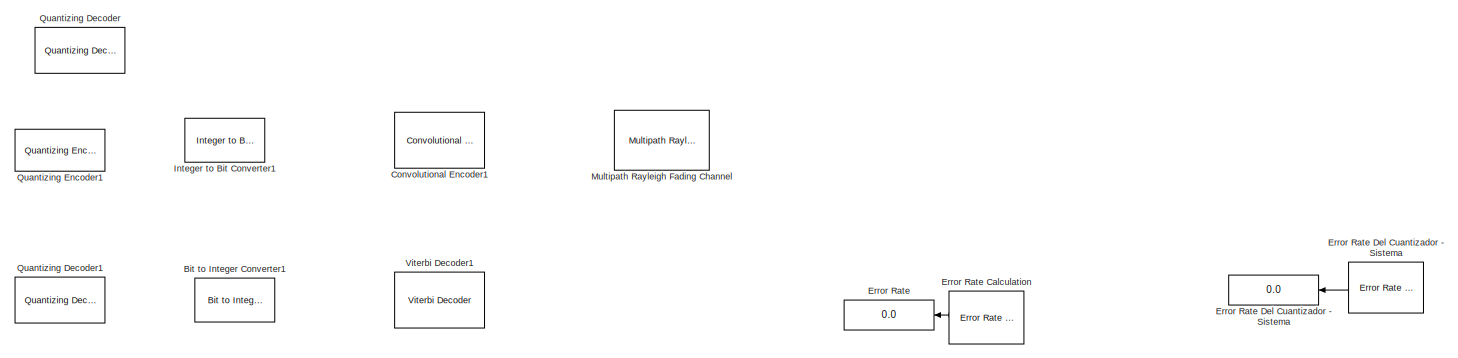
[diagram: root canvas - part 1/2, central region]
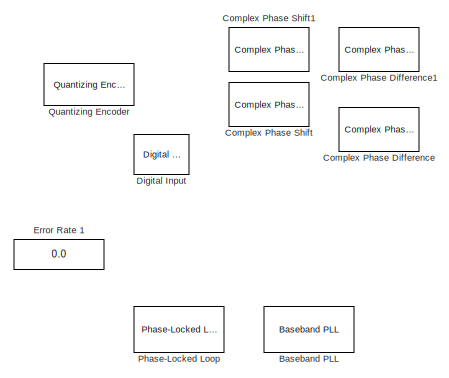
[diagram: root canvas - part 2/2, middle left region]
MODEL slx_0448f2ebf8d8
KIND model
CONFIG AbsTol = auto
CONFIG FixedStep = auto
CONFIG MaxStep = auto
CONFIG MinStep = auto
CONFIG RelTol = 1e-3
CONFIG SampleTimeConstraint = Unconstrained
CONFIG Solver = VariableStepAuto
CONFIG SolverMode = Auto
CONFIG SolverName = VariableStepAuto
CONFIG StartTime = 0.0
CONFIG StopTime = 10.0
BLOCK [Reference] Baseband PLL  REF=commsynccomp2/Baseband
PLL
  Ports = [1, 3]
  SourceBlock = commsynccomp2/Baseband\nPLL
  SourceType = Baseband PLL
BLOCK [Reference] Bit to Integer Converter1  REF=commutil2/Bit to Integer
Converter
  Ports = [1, 1]
  SourceBlock = commutil2/Bit to Integer\nConverter
  SourceType = Bit to Integer Converter
BLOCK [Reference] Complex Phase Difference  REF=commutil2/Complex Phase
Difference
  Ports = [2, 1]
  SourceBlock = commutil2/Complex Phase\nDifference
  SourceType = Complex Phase Difference
BLOCK [Reference] Complex Phase Difference1  REF=commutil2/Complex Phase
Difference
  Ports = [2, 1]
  SourceBlock = commutil2/Complex Phase\nDifference
  SourceType = Complex Phase Difference
BLOCK [Reference] Complex Phase Shift  REF=commutil2/Complex Phase
Shift
  Ports = [2, 1]
  SourceBlock = commutil2/Complex Phase\nShift
  SourceType = Complex Phase Shift
BLOCK [Reference] Complex Phase Shift1  REF=commutil2/Complex Phase
Shift
  Ports = [2, 1]
  SourceBlock = commutil2/Complex Phase\nShift
  SourceType = Complex Phase Shift
BLOCK [Reference] Convolutional Encoder1  REF=commcnvcod2/Convolutional
Encoder
  Ports = [1, 1]
  SourceBlock = commcnvcod2/Convolutional\nEncoder
  SourceType = Convolutional Encoder
BLOCK [Reference] Digital Input  REF=sldrtlib/Digital Input
  Ports = [0, 1]
  SourceBlock = sldrtlib/Digital Input
  SourceType = Simulink Desktop Real-Time Digital Input
BLOCK [Display] Error Rate 
  Decimation = 1
  Ports = [1]
BLOCK [Display] Error Rate 1
  Decimation = 1
  Ports = [1]
BLOCK [Reference] Error Rate Calculation  REF=commsink2/Error Rate
Calculation
  Ports = [2, 1]
  SourceBlock = commsink2/Error Rate\nCalculation
  SourceType = Error Rate Calculation
BLOCK [Reference] Error Rate Del Cuantizador - Sistema   REF=commsink2/Error Rate
Calculation
  Ports = [2, 1]
  SourceBlock = commsink2/Error Rate\nCalculation
  SourceType = Error Rate Calculation
BLOCK [Reference] Integer to Bit Converter1  REF=commutil2/Integer to Bit
Converter
  Ports = [1, 1]
  SourceBlock = commutil2/Integer to Bit\nConverter
  SourceType = Integer to Bit Converter
BLOCK [Reference] Multipath Rayleigh Fading Channel  REF=commchan3/Multipath Rayleigh
Fading Channel
  Ports = [1, 1]
  SourceBlock = commchan3/Multipath Rayleigh\nFading Channel
  SourceType = Multipath Rayleigh Fading Channel
BLOCK [Reference] Phase-Locked Loop  REF=commsynccomp2/Phase-Locked
Loop
  Ports = [1, 3]
  SourceBlock = commsynccomp2/Phase-Locked\nLoop
  SourceType = Phase-Locked Loop
BLOCK [Reference] Quantizing Decoder  REF=commsrccod2/Quantizing
Decoder
  Ports = [1, 1]
  SourceBlock = commsrccod2/Quantizing\nDecoder
  SourceType = Quantizing Decoder
BLOCK [Reference] Quantizing Decoder1  REF=commsrccod2/Quantizing
Decoder
  Ports = [1, 1]
  SourceBlock = commsrccod2/Quantizing\nDecoder
  SourceType = Quantizing Decoder
BLOCK [Reference] Quantizing Encoder  REF=commsrccod2/Quantizing
Encoder
  Ports = [1, 2]
  SourceBlock = commsrccod2/Quantizing\nEncoder
  SourceType = Quantizing Encoder
BLOCK [Reference] Quantizing Encoder1  REF=commsrccod2/Quantizing
Encoder
  Ports = [1, 2]
  SourceBlock = commsrccod2/Quantizing\nEncoder
  SourceType = Quantizing Encoder
BLOCK [Reference] Viterbi Decoder1  REF=commcnvcod2/Viterbi Decoder
  Ports = [1, 1]
  SourceBlock = commcnvcod2/Viterbi Decoder
  SourceType = Viterbi Decoder
LINE Error Rate Calculation:1 -> Error Rate :1
LINE Error Rate Del Cuantizador - Sistema :1 -> Error Rate Del Cuantizador - Sistema :1
